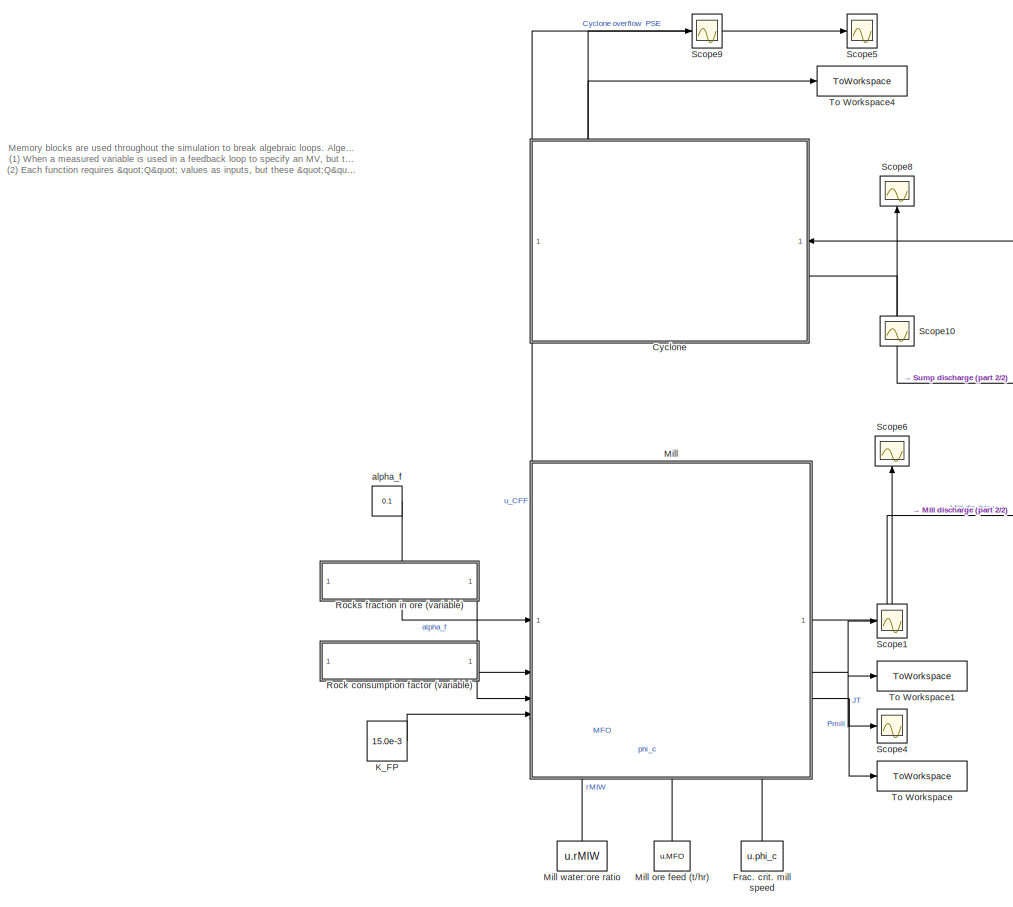
[diagram: root canvas - part 1/2, left side, full height]
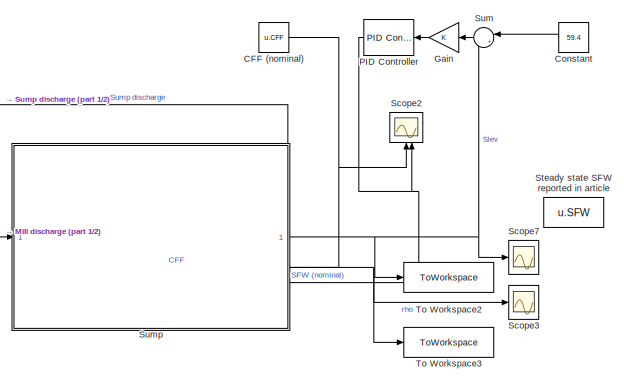
[diagram: root canvas - part 2/2, middle right region]
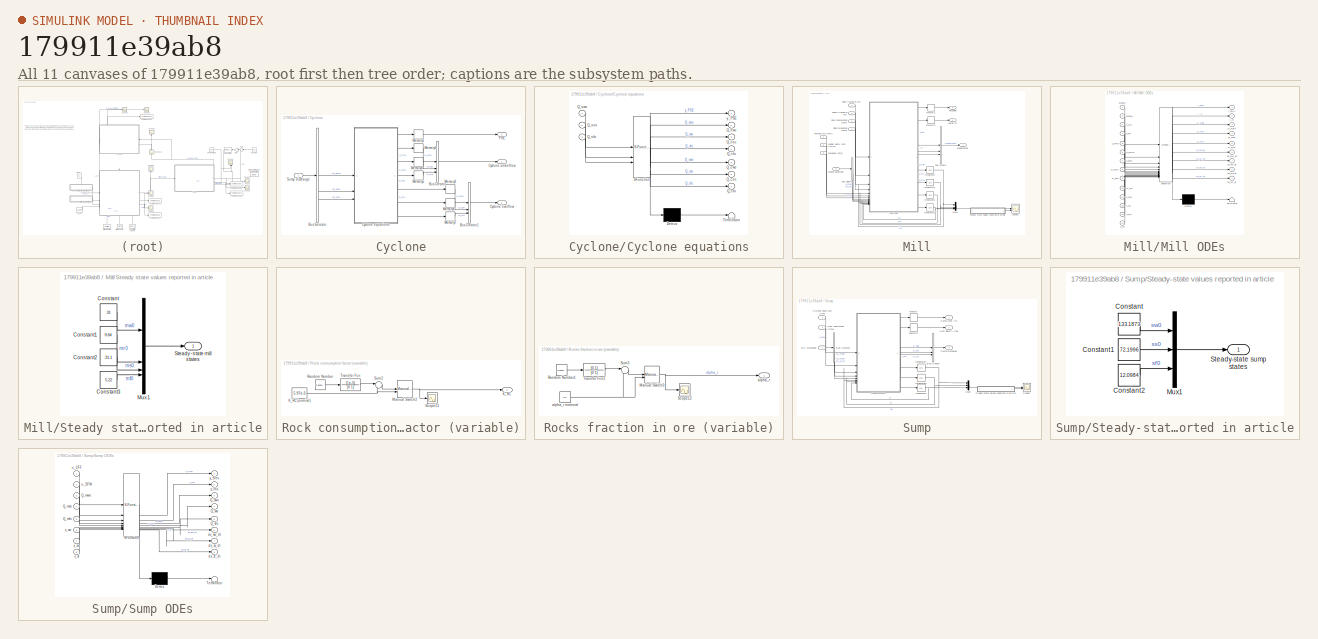
[diagram: thumbnail index - all 11 canvases of the model, root first then tree order]
MODEL slx_179911e39ab8
KIND model
CONFIG AbsTol = auto
CONFIG EnableMultiTasking = off
CONFIG FixedStep = auto
CONFIG MaxStep = auto
CONFIG MinStep = auto
CONFIG RelTol = 1e-3
CONFIG SampleTimeConstraint = Unconstrained
CONFIG SolverName = ode23s
CONFIG StartTime = 0.0
CONFIG StopTime = 200
BLOCK [Constant] CFF (nominal)
  NameLocation = left
  Value = u.CFF
BLOCK [Constant] Constant
  Value = 59.4
BLOCK [SubSystem] Cyclone
  PortSchema = {"entries":[{"content":{"sides":[{"content":{"connectorIds":["In1"]},"type":"ConnectorPlacement.EquallySpacedRectSide","uuid":"e004a590-ab7d-4f12-a32b-87c0f3362931"},{"content":{"side":"RIGHT"},"type":"ConnectorPlacement.EquallySpacedRectSide","uuid":"81f63357-3f4a-425b-a75c-7db5f55a4185"},{"content":{"connectorIds":["Out2","Out3"],"side":"TOP"},"type":"ConnectorPlacement.EquallySpacedRectSide","u...<+379ch>
BLOCK [BusCreator] Cyclone/Bus Creator
  DisplayOption = bar
  InheritFromInputs = on
  Inputs = 3
BLOCK [BusCreator] Cyclone/Bus Creator1
  DisplayOption = bar
  InheritFromInputs = on
  Inputs = 3
BLOCK [BusSelector] Cyclone/Bus Selector
  OutputSignals = Q_swo,Q_sso,Q_sfo
BLOCK [SubSystem] Cyclone/Cyclone equations
  ErrorFcn = Stateflow.Translate.translate
  PermitHierarchicalResolution = ExplicitOnly
  SFBlockType = MATLAB Function
  TreatAsAtomicUnit = on
BLOCK [Demux] Cyclone/Cyclone equations/ Demux 
  Outputs = 1
BLOCK [S-Function] Cyclone/Cyclone equations/ SFunction 
  EnableBusSupport = on
  FunctionName = sf_sfun
  PortCounts = [3 8]
  SFcnIsStateOwnerBlock = off
  SFunctionDeploymentMode = off
  Tag = Stateflow S-Function 3
BLOCK [Terminator] Cyclone/Cyclone equations/ Terminator 
BLOCK [Outport] Cyclone/Cyclone equations/Q_cfo
  Port = 7
BLOCK [Outport] Cyclone/Cyclone equations/Q_cfu
  Port = 4
BLOCK [Outport] Cyclone/Cyclone equations/Q_cso
  Port = 6
BLOCK [Outport] Cyclone/Cyclone equations/Q_csu
  Port = 3
BLOCK [Outport] Cyclone/Cyclone equations/Q_cwo
  Port = 5
BLOCK [Outport] Cyclone/Cyclone equations/Q_cwu
  Port = 2
BLOCK [Inport] Cyclone/Cyclone equations/Q_sfo
  Port = 3
BLOCK [Inport] Cyclone/Cyclone equations/Q_sso
  Port = 2
BLOCK [Inport] Cyclone/Cyclone equations/Q_swo
BLOCK [Outport] Cyclone/Cyclone equations/y_PSE
BLOCK [Outport] Cyclone/Cyclone overflow
  Port = 3
BLOCK [Outport] Cyclone/Cyclone underflow
BLOCK [Memory] Cyclone/Memory1
  InitialCondition = 37.9
BLOCK [Memory] Cyclone/Memory2
  InitialCondition = 1551.5
BLOCK [Memory] Cyclone/Memory3
  InitialCondition = 342.4747
BLOCK [Memory] Cyclone/Memory4
  InitialCondition = 654.4822
BLOCK [Memory] Cyclone/Memory5
  InitialCondition = 31.1095
BLOCK [Memory] Cyclone/Memory6
  InitialCondition = 372.2295
BLOCK [Memory] Cyclone/Memory7
  InitialCondition = 140.935
BLOCK [Outport] Cyclone/PSE
  Port = 2
BLOCK [Inport] Cyclone/Sump discharge
BLOCK [Constant] Frac. crit. mill speed
  Value = u.phi_c
BLOCK [Gain] Gain
BLOCK [Constant] K_FP
  NameLocation = left
  Value = 15.0e-3
BLOCK [SubSystem] Mill
  PortSchema = {"entries":[{"content":{"sides":[{"content":{"connectorIds":["In1","In2","In3","In4"]},"type":"ConnectorPlacement.EquallySpacedRectSide","uuid":"96805061-b1fe-4613-bdfe-c0403b68937d"},{"content":{"connectorIds":["Out1","Out2","Out3"],"side":"RIGHT"},"type":"ConnectorPlacement.EquallySpacedRectSide","uuid":"6c17841b-9594-4814-b3ce-f10677336251"},{"content":{"connectorIds":["In5"],"side":"TOP"},"typ...<+438ch>
BLOCK [Constant] Mill ore feed (t//hr)
  Value = u.MFO
BLOCK [Constant] Mill water:ore ratio
  Value = u.rMIW
BLOCK [BusCreator] Mill/Bus Creator
  DisplayOption = bar
  InheritFromInputs = on
  Inputs = Q_mwo,Q_mso,Q_mfo
BLOCK [BusSelector] Mill/Bus Selector
  OutputSignals = Q_cwu,Q_csu,Q_cfu
BLOCK [Inport] Mill/Cyclone underflow
  Port = 5
BLOCK [Inport] Mill/Fines fraction in ore
BLOCK [Inport] Mill/Fines production factor
  Port = 4
BLOCK [Integrator] Mill/Integrator
  InitialCondition = 31.4051
  LimitOutput = on
  LowerSaturationLimit = 0
BLOCK [Integrator] Mill/Integrator1
  InitialCondition = 9.8378
  LimitOutput = on
  LowerSaturationLimit = 0
BLOCK [Integrator] Mill/Integrator2
  InitialCondition = 31.1314
  LimitOutput = on
  LowerSaturationLimit = 0
BLOCK [Integrator] Mill/Integrator3
  InitialCondition = 5.2166
  LimitOutput = on
  LowerSaturationLimit = 0
BLOCK [Memory] Mill/Memory1
  InitialCondition = 14.812
BLOCK [Memory] Mill/Memory2
  InitialCondition = 0.328
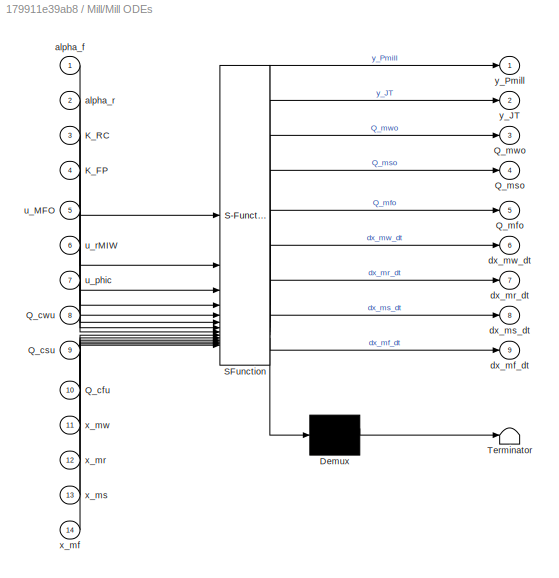
BLOCK [SubSystem] Mill/Mill ODEs
  ErrorFcn = Stateflow.Translate.translate
  PermitHierarchicalResolution = ExplicitOnly
  SFBlockType = MATLAB Function
  TreatAsAtomicUnit = on
BLOCK [Demux] Mill/Mill ODEs/ Demux 
  Outputs = 1
BLOCK [S-Function] Mill/Mill ODEs/ SFunction 
  EnableBusSupport = on
  FunctionName = sf_sfun
  PortCounts = [14 10]
  SFcnIsStateOwnerBlock = off
  SFunctionDeploymentMode = off
  Tag = Stateflow S-Function 2
BLOCK [Terminator] Mill/Mill ODEs/ Terminator 
BLOCK [Inport] Mill/Mill ODEs/K_FP
  Port = 4
BLOCK [Inport] Mill/Mill ODEs/K_RC
  Port = 3
BLOCK [Inport] Mill/Mill ODEs/Q_cfu
  Port = 10
BLOCK [Inport] Mill/Mill ODEs/Q_csu
  Port = 9
BLOCK [Inport] Mill/Mill ODEs/Q_cwu
  Port = 8
BLOCK [Outport] Mill/Mill ODEs/Q_mfo
  Port = 5
BLOCK [Outport] Mill/Mill ODEs/Q_mso
  Port = 4
BLOCK [Outport] Mill/Mill ODEs/Q_mwo
  Port = 3
BLOCK [Inport] Mill/Mill ODEs/alpha_f
BLOCK [Inport] Mill/Mill ODEs/alpha_r
  Port = 2
BLOCK [Outport] Mill/Mill ODEs/dx_mf_dt
  Port = 9
BLOCK [Outport] Mill/Mill ODEs/dx_mr_dt
  Port = 7
BLOCK [Outport] Mill/Mill ODEs/dx_ms_dt
  Port = 8
BLOCK [Outport] Mill/Mill ODEs/dx_mw_dt
  Port = 6
BLOCK [Inport] Mill/Mill ODEs/u_MFO
  Port = 5
BLOCK [Inport] Mill/Mill ODEs/u_phic
  Port = 7
BLOCK [Inport] Mill/Mill ODEs/u_rMIW
  Port = 6
BLOCK [Inport] Mill/Mill ODEs/x_mf
  Port = 14
BLOCK [Inport] Mill/Mill ODEs/x_mr
  Port = 12
BLOCK [Inport] Mill/Mill ODEs/x_ms
  Port = 13
BLOCK [Inport] Mill/Mill ODEs/x_mw
  Port = 11
BLOCK [Outport] Mill/Mill ODEs/y_JT
  Port = 2
BLOCK [Outport] Mill/Mill ODEs/y_Pmill
BLOCK [Outport] Mill/Mill discharge
BLOCK [Inport] Mill/Mill feed ore (MFO)
  Port = 7
BLOCK [Outport] Mill/Mill fill (JT)
  Port = 2
BLOCK [Inport] Mill/Mill inlet water ratio (rMIW)
  Port = 6
BLOCK [Outport] Mill/Mill power
  Port = 3
BLOCK [Inport] Mill/Mill speed (phi_C)
  Port = 8
BLOCK [Mux] Mill/Mux2
  DisplayOption = bar
BLOCK [Inport] Mill/Rock consumption factor
  Port = 3
BLOCK [Inport] Mill/Rocks fraction in ore
  Port = 2
BLOCK [Scope] Mill/Scope1
  Floating = off
  NumInputPorts = 2
  ScopeSpecificationString = Simulink.scopes.TimeScopeBlockCfg('CurrentConfiguration', extmgr.ConfigurationSet(extmgr.Configuration('Core','General UI',true,'FigureColor',[1 1 1]),extmgr.Configuration('Core','Source UI',true),extmgr.Configuration('Sources','WiredSimulink',true,'DataLoggingVariableName','ScopeData6'),extmgr.Configuration('Visuals','Time Domain',true,'SerializedDisplays',{struct('MinYLimReal','-3.51201','MaxYLi...<+2612ch>
BLOCK [SubSystem] Mill/Steady state values reported in article
BLOCK [Constant] Mill/Steady state values reported in article/Constant
  Value = 31
BLOCK [Constant] Mill/Steady state values reported in article/Constant1
  Value = 9.84
BLOCK [Constant] Mill/Steady state values reported in article/Constant2
  Value = 31.1
BLOCK [Constant] Mill/Steady state values reported in article/Constant3
  Value = 5.22
BLOCK [Mux] Mill/Steady state values reported in article/Mux1
  DisplayOption = bar
BLOCK [Outport] Mill/Steady state values reported in article/Steady-state mill states
BLOCK [Reference] PID Controller  REF=slpidlib/PID Controller
  LibrarySourceBlock = simulink/Continuous/PID Controller
  SourceBlock = slpidlib/PID Controller
  SourceType = PID 1dof
BLOCK [SubSystem] Rock consumption factor (variable)
BLOCK [Outport] Rock consumption factor (variable)/K_RC
BLOCK [Constant] Rock consumption factor (variable)/K_RC (nomial)
  NameLocation = left
  Value = 5.97e-3
BLOCK [ManualSwitch] Rock consumption factor (variable)/Manual Switch2
  CurrentSetting = 0
BLOCK [RandomNumber] Rock consumption factor (variable)/Random Number
  SampleTime = 4
BLOCK [Scope] Rock consumption factor (variable)/Scope11
  Floating = off
  NumInputPorts = 1
  ScopeSpecificationString = Simulink.scopes.TimeScopeBlockCfg('CurrentConfiguration', extmgr.ConfigurationSet(extmgr.Configuration('Core','General UI',true,'FigureColor',[1 1 1]),extmgr.Configuration('Core','Source UI',true),extmgr.Configuration('Sources','WiredSimulink',true,'DataLoggingVariableName','ScopeData1'),extmgr.Configuration('Visuals','Time Domain',true,'SerializedDisplays',{struct('MinYLimReal','0.00514','MaxYLim...<+1704ch>
BLOCK [Sum] Rock consumption factor (variable)/Sum2
  Inputs = |++
BLOCK [TransferFcn] Rock consumption factor (variable)/Transfer Fcn
  Denominator = [0 1]
  Numerator = [1e-3]
BLOCK [SubSystem] Rocks fraction in ore (variable)
BLOCK [ManualSwitch] Rocks fraction in ore (variable)/Manual Switch3
  CurrentSetting = 0
BLOCK [RandomNumber] Rocks fraction in ore (variable)/Random Number1
  SampleTime = 2
BLOCK [Scope] Rocks fraction in ore (variable)/Scope12
  Floating = off
  NumInputPorts = 1
  ScopeSpecificationString = Simulink.scopes.TimeScopeBlockCfg('CurrentConfiguration', extmgr.ConfigurationSet(extmgr.Configuration('Core','General UI',true,'FigureColor',[1 1 1]),extmgr.Configuration('Core','Source UI',true),extmgr.Configuration('Sources','WiredSimulink',true,'DataLoggingVariableName','ScopeData2'),extmgr.Configuration('Visuals','Time Domain',true,'SerializedDisplays',{struct('MinYLimReal','0.00514','MaxYLim...<+1704ch>
BLOCK [Sum] Rocks fraction in ore (variable)/Sum3
  Inputs = |++
BLOCK [TransferFcn] Rocks fraction in ore (variable)/Transfer Fcn1
  Denominator = [0 1]
  Numerator = [0.1]
BLOCK [Outport] Rocks fraction in ore (variable)/alpha_r
BLOCK [Constant] Rocks fraction in ore (variable)/alpha_r nominal
  NameLocation = left
  Value = 0.5
BLOCK [Scope] Scope1
  Floating = off
  NumInputPorts = 1
  ScopeSpecificationString = Simulink.scopes.TimeScopeBlockCfg('CurrentConfiguration', extmgr.ConfigurationSet(extmgr.Configuration('Core','General UI',true,'FigureColor',[1 1 1]),extmgr.Configuration('Core','Source UI',true),extmgr.Configuration('Sources','WiredSimulink',true,'DataLoggingVariableName','ScopeData4'),extmgr.Configuration('Visuals','Time Domain',true,'SerializedDisplays',{struct('MinYLimReal','0.31934','MaxYLim...<+1693ch>
BLOCK [Scope] Scope10
  Floating = off
  NameLocation = right
  NumInputPorts = 1
  ScopeSpecificationString = Simulink.scopes.TimeScopeBlockCfg('CurrentConfiguration', extmgr.ConfigurationSet(extmgr.Configuration('Core','General UI',true,'FigureColor',[1 1 1]),extmgr.Configuration('Core','Source UI',true),extmgr.Configuration('Sources','WiredSimulink',true,'DataLoggingVariableName','ScopeData2'),extmgr.Configuration('Visuals','Time Domain',true,'SerializedDisplays',{struct('MinYLimReal','-59.63541','MaxYL...<+2189ch>
BLOCK [Scope] Scope2
  Floating = off
  NameLocation = right
  NumInputPorts = 2
  ScopeSpecificationString = Simulink.scopes.TimeScopeBlockCfg('CurrentConfiguration', extmgr.ConfigurationSet(extmgr.Configuration('Core','General UI',true,'FigureColor',[1 1 1]),extmgr.Configuration('Core','Source UI',true),extmgr.Configuration('Sources','WiredSimulink',true,'DataLoggingVariableName','ScopeData5'),extmgr.Configuration('Visuals','Time Domain',true,'SerializedDisplays',{struct('MinYLimReal','615.90382','MaxYL...<+2239ch>
BLOCK [Scope] Scope3
  Floating = off
  NumInputPorts = 1
  ScopeSpecificationString = Simulink.scopes.TimeScopeBlockCfg('CurrentConfiguration', extmgr.ConfigurationSet(extmgr.Configuration('Core','General UI',true,'FigureColor',[1 1 1]),extmgr.Configuration('Core','Source UI',true),extmgr.Configuration('Sources','WiredSimulink',true,'DataLoggingVariableName','ScopeData2'),extmgr.Configuration('Visuals','Time Domain',true,'SerializedDisplays',{struct('MinYLimReal','1.75557','MaxYLim...<+1689ch>
BLOCK [Scope] Scope4
  Floating = off
  NumInputPorts = 1
  ScopeSpecificationString = Simulink.scopes.TimeScopeBlockCfg('CurrentConfiguration', extmgr.ConfigurationSet(extmgr.Configuration('Core','General UI',true,'FigureColor',[1 1 1]),extmgr.Configuration('Core','Source UI',true),extmgr.Configuration('Sources','WiredSimulink',true,'DataLoggingVariableName','ScopeData3'),extmgr.Configuration('Visuals','Time Domain',true,'SerializedDisplays',{struct('MinYLimReal','14.6843','MaxYLim...<+1699ch>
BLOCK [Scope] Scope5
  Floating = off
  NumInputPorts = 1
  ScopeSpecificationString = Simulink.scopes.TimeScopeBlockCfg('CurrentConfiguration', extmgr.ConfigurationSet(extmgr.Configuration('Core','General UI',true,'FigureColor',[1 1 1]),extmgr.Configuration('Core','Source UI',true),extmgr.Configuration('Sources','WiredSimulink',true,'DataLoggingVariableName','ScopeData5'),extmgr.Configuration('Visuals','Time Domain',true,'SerializedDisplays',{struct('MinYLimReal','35.73414','MaxYLi...<+1702ch>
BLOCK [Scope] Scope6
  Floating = off
  NameLocation = right
  NumInputPorts = 1
  ScopeSpecificationString = Simulink.scopes.TimeScopeBlockCfg('CurrentConfiguration', extmgr.ConfigurationSet(extmgr.Configuration('Core','General UI',true,'FigureColor',[1 1 1]),extmgr.Configuration('Core','Source UI',true),extmgr.Configuration('Sources','WiredSimulink',true,'DataLoggingVariableName','ScopeData6'),extmgr.Configuration('Visuals','Time Domain',true,'SerializedDisplays',{struct('MinYLimReal','44.69141','MaxYLi...<+2250ch>
BLOCK [Scope] Scope7
  Floating = off
  NumInputPorts = 1
  ScopeSpecificationString = Simulink.scopes.TimeScopeBlockCfg('CurrentConfiguration', extmgr.ConfigurationSet(extmgr.Configuration('Core','General UI',true,'FigureColor',[1 1 1]),extmgr.Configuration('Core','Source UI',true),extmgr.Configuration('Sources','WiredSimulink',true,'DataLoggingVariableName','ScopeData3'),extmgr.Configuration('Visuals','Time Domain',true,'SerializedDisplays',{struct('MinYLimReal','59.33077','MaxYLi...<+1704ch>
BLOCK [Scope] Scope8
  Floating = off
  NameLocation = right
  NumInputPorts = 1
  ScopeSpecificationString = Simulink.scopes.TimeScopeBlockCfg('CurrentConfiguration', extmgr.ConfigurationSet(extmgr.Configuration('Core','General UI',true,'FigureColor',[1 1 1]),extmgr.Configuration('Core','Source UI',true),extmgr.Configuration('Sources','WiredSimulink',true,'DataLoggingVariableName','ScopeData1'),extmgr.Configuration('Visuals','Time Domain',true,'SerializedDisplays',{struct('MinYLimReal','-91.9704','MaxYLi...<+2245ch>
BLOCK [Scope] Scope9
  Floating = off
  NumInputPorts = 1
  ScopeSpecificationString = Simulink.scopes.TimeScopeBlockCfg('CurrentConfiguration', extmgr.ConfigurationSet(extmgr.Configuration('Core','General UI',true,'FigureColor',[1 1 1]),extmgr.Configuration('Core','Source UI',true),extmgr.Configuration('Sources','WiredSimulink',true,'DataLoggingVariableName','ScopeData1'),extmgr.Configuration('Visuals','Time Domain',true,'SerializedDisplays',{struct('MinYLimReal','-91.9704','MaxYLi...<+2251ch>
BLOCK [Constant] Steady state SFW reported in article
  NameLocation = right
  Value = u.SFW
BLOCK [Sum] Sum
  Inputs = |+-
BLOCK [SubSystem] Sump
  PortSchema = {"entries":[{"content":{"sides":[{"content":{"connectorIds":["In1"]},"type":"ConnectorPlacement.EquallySpacedRectSide","uuid":"4a068f6d-5fe1-4cb3-a916-3556d51fbafc"},{"content":{"connectorIds":["In2","In3","Out1","Out2"],"side":"RIGHT"},"type":"ConnectorPlacement.EquallySpacedRectSide","uuid":"4fd936c1-8f9e-49fb-973c-89f6d774d731"},{"content":{"connectorIds":["Out3"],"side":"TOP"},"type":"Connecto...<+265ch>
BLOCK [BusCreator] Sump/Bus Creator
  DisplayOption = bar
  InheritFromInputs = on
  Inputs = 3
BLOCK [BusSelector] Sump/Bus Selector
  OutputSignals = Q_mwo,Q_mso,Q_mfo
BLOCK [Inport] Sump/Cyclone feed flow (CFF)
  Port = 2
BLOCK [Integrator] Sump/Integrator4
  InitialCondition = 133.187
  LimitOutput = on
  LowerSaturationLimit = 0
BLOCK [Integrator] Sump/Integrator5
  InitialCondition = 72.1996
  LimitOutput = on
  LowerSaturationLimit = 1e-3
BLOCK [Integrator] Sump/Integrator6
  InitialCondition = 12.09
  LimitOutput = on
  LowerSaturationLimit = 0
BLOCK [Memory] Sump/Memory
  InitialCondition = 59.4
BLOCK [Memory] Sump/Memory1
  InitialCondition = 1.7733
BLOCK [Inport] Sump/Mill discharge
BLOCK [Mux] Sump/Mux2
  DisplayOption = bar
  Inputs = 3
BLOCK [Scope] Sump/Scope7
  Floating = off
  NumInputPorts = 2
  ScopeSpecificationString = Simulink.scopes.TimeScopeBlockCfg('CurrentConfiguration', extmgr.ConfigurationSet(extmgr.Configuration('Core','General UI',true,'FigureColor',[1 1 1]),extmgr.Configuration('Core','Source UI',true),extmgr.Configuration('Sources','WiredSimulink',true,'DataLoggingVariableName','ScopeData12'),extmgr.Configuration('Visuals','Time Domain',true,'SerializedDisplays',{struct('MinYLimReal','-4.60535','MaxYL...<+2334ch>
BLOCK [SubSystem] Sump/Steady-state values reported in article
BLOCK [Constant] Sump/Steady-state values reported in article/Constant
  Value = 133.1873
BLOCK [Constant] Sump/Steady-state values reported in article/Constant1
  Value = 72.1996
BLOCK [Constant] Sump/Steady-state values reported in article/Constant2
  Value = 12.0984
BLOCK [Mux] Sump/Steady-state values reported in article/Mux1
  DisplayOption = bar
  Inputs = 3
BLOCK [Outport] Sump/Steady-state values reported in article/Steady-state sump states
BLOCK [Outport] Sump/Sum density (rho)
  Port = 2
BLOCK [Inport] Sump/Sum feed water (SFW)
  Port = 3
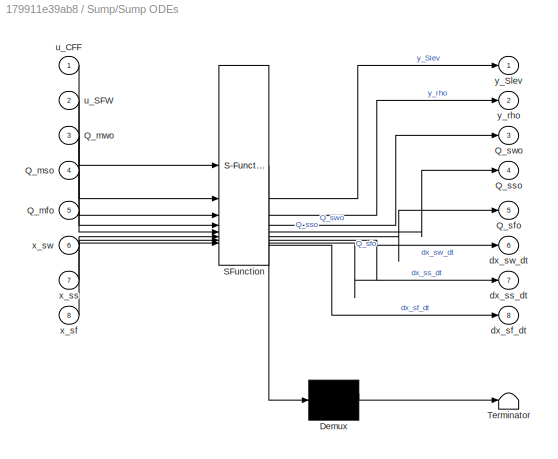
BLOCK [SubSystem] Sump/Sump ODEs
  ErrorFcn = Stateflow.Translate.translate
  PermitHierarchicalResolution = ExplicitOnly
  SFBlockType = MATLAB Function
  TreatAsAtomicUnit = on
BLOCK [Demux] Sump/Sump ODEs/ Demux 
  Outputs = 1
BLOCK [S-Function] Sump/Sump ODEs/ SFunction 
  EnableBusSupport = on
  FunctionName = sf_sfun
  PortCounts = [8 9]
  SFcnIsStateOwnerBlock = off
  SFunctionDeploymentMode = off
  Tag = Stateflow S-Function 1
BLOCK [Terminator] Sump/Sump ODEs/ Terminator 
BLOCK [Inport] Sump/Sump ODEs/Q_mfo
  Port = 5
BLOCK [Inport] Sump/Sump ODEs/Q_mso
  Port = 4
BLOCK [Inport] Sump/Sump ODEs/Q_mwo
  Port = 3
BLOCK [Outport] Sump/Sump ODEs/Q_sfo
  Port = 5
BLOCK [Outport] Sump/Sump ODEs/Q_sso
  Port = 4
BLOCK [Outport] Sump/Sump ODEs/Q_swo
  Port = 3
BLOCK [Outport] Sump/Sump ODEs/dx_sf_dt
  Port = 8
BLOCK [Outport] Sump/Sump ODEs/dx_ss_dt
  Port = 7
BLOCK [Outport] Sump/Sump ODEs/dx_sw_dt
  Port = 6
BLOCK [Inport] Sump/Sump ODEs/u_CFF
BLOCK [Inport] Sump/Sump ODEs/u_SFW
  Port = 2
BLOCK [Inport] Sump/Sump ODEs/x_sf
  Port = 8
BLOCK [Inport] Sump/Sump ODEs/x_ss
  Port = 7
BLOCK [Inport] Sump/Sump ODEs/x_sw
  Port = 6
BLOCK [Outport] Sump/Sump ODEs/y_Slev
BLOCK [Outport] Sump/Sump ODEs/y_rho
  Port = 2
BLOCK [Outport] Sump/Sump discharge
  Port = 3
BLOCK [Outport] Sump/Sump level (%)
BLOCK [ToWorkspace] To Workspace
  FixptAsFi = on
  MaxDataPoints = inf
  SampleTime = 1/60
  VariableName = Pmill
BLOCK [ToWorkspace] To Workspace1
  FixptAsFi = on
  MaxDataPoints = inf
  SampleTime = 1/60
  VariableName = JT
BLOCK [ToWorkspace] To Workspace2
  FixptAsFi = on
  MaxDataPoints = inf
  SampleTime = 1/60
  VariableName = Slev
BLOCK [ToWorkspace] To Workspace3
  FixptAsFi = on
  MaxDataPoints = inf
  SampleTime = 1/60
  VariableName = rho
BLOCK [ToWorkspace] To Workspace4
  FixptAsFi = on
  MaxDataPoints = inf
  SampleTime = 1/60
  VariableName = PSE
BLOCK [Constant] alpha_f
  NameLocation = left
  Value = 0.1
ANNOTATION (root): Memory blocks are used throughout the simulation to break algebraic loops. Algebraic loops occur for two reasons: (1) When a measured variable is used in a feedback loop to specify an MV, but the MV is a required input in the function block used to calculate the measured variable (2) Each function requires "Q" values as inputs, but these "Q" values are outputs from the other functions, forming an ...<+15ch>
NET CFF (nominal):1 -> Scope2:1, Sump:2
LINE Constant:1 -> Sum:1
LINE Cyclone/Bus Creator1:1 -> Cyclone/Cyclone overflow:1
LINE Cyclone/Bus Creator:1 -> Cyclone/Cyclone underflow:1
LINE Cyclone/Bus Selector:1 -> Cyclone/Cyclone equations:1
LINE Cyclone/Bus Selector:2 -> Cyclone/Cyclone equations:2
LINE Cyclone/Bus Selector:3 -> Cyclone/Cyclone equations:3
LINE Cyclone/Cyclone equations:1 -> Cyclone/Memory1:1
LINE Cyclone/Cyclone equations:2 -> Cyclone/Memory3:1
LINE Cyclone/Cyclone equations:3 -> Cyclone/Memory4:1
LINE Cyclone/Cyclone equations:4 -> Cyclone/Memory5:1
LINE Cyclone/Cyclone equations:5 -> Cyclone/Memory2:1
LINE Cyclone/Cyclone equations:6 -> Cyclone/Memory6:1
LINE Cyclone/Cyclone equations:7 -> Cyclone/Memory7:1
LINE Cyclone/Memory1:1 -> Cyclone/PSE:1
LINE Cyclone/Memory2:1 -> Cyclone/Bus Creator1:1
LINE Cyclone/Memory3:1 -> Cyclone/Bus Creator:1
LINE Cyclone/Memory4:1 -> Cyclone/Bus Creator:2
LINE Cyclone/Memory5:1 -> Cyclone/Bus Creator:3
LINE Cyclone/Memory6:1 -> Cyclone/Bus Creator1:2
LINE Cyclone/Memory7:1 -> Cyclone/Bus Creator1:3
LINE Cyclone/Sump discharge:1 -> Cyclone/Bus Selector:1
NET Cyclone:1 -> Mill:5, Scope10:1
NET Cyclone:2 -> Scope5:1, To Workspace4:1
LINE Cyclone:3 -> Scope9:1
LINE Frac. crit. mill speed:1 -> Mill:8
LINE Gain:1 -> PID Controller:1
LINE K_FP:1 -> Mill:4
LINE Mill ore feed (t//hr):1 -> Mill:7
LINE Mill water:ore ratio:1 -> Mill:6
LINE Mill/Bus Creator:1 -> Mill/Mill discharge:1
LINE Mill/Bus Selector:1 -> Mill/Mill ODEs:8
LINE Mill/Bus Selector:2 -> Mill/Mill ODEs:9
LINE Mill/Bus Selector:3 -> Mill/Mill ODEs:10
LINE Mill/Cyclone underflow:1 -> Mill/Bus Selector:1
LINE Mill/Fines fraction in ore:1 -> Mill/Mill ODEs:1
LINE Mill/Fines production factor:1 -> Mill/Mill ODEs:4
NET Mill/Integrator1:1 -> Mill/Mill ODEs:12, Mill/Mux2:2
NET Mill/Integrator2:1 -> Mill/Mill ODEs:13, Mill/Mux2:3
NET Mill/Integrator3:1 -> Mill/Mill ODEs:14, Mill/Mux2:4
NET Mill/Integrator:1 -> Mill/Mill ODEs:11, Mill/Mux2:1
LINE Mill/Memory1:1 -> Mill/Mill power:1
LINE Mill/Memory2:1 -> Mill/Mill fill (JT):1
LINE Mill/Mill ODEs:1 -> Mill/Memory1:1
LINE Mill/Mill ODEs:2 -> Mill/Memory2:1
LINE Mill/Mill ODEs:3 -> Mill/Bus Creator:1
LINE Mill/Mill ODEs:4 -> Mill/Bus Creator:2
LINE Mill/Mill ODEs:5 -> Mill/Bus Creator:3
LINE Mill/Mill ODEs:6 -> Mill/Integrator:1
LINE Mill/Mill ODEs:7 -> Mill/Integrator1:1
LINE Mill/Mill ODEs:8 -> Mill/Integrator2:1
LINE Mill/Mill ODEs:9 -> Mill/Integrator3:1
LINE Mill/Mill feed ore (MFO):1 -> Mill/Mill ODEs:5
LINE Mill/Mill inlet water ratio (rMIW):1 -> Mill/Mill ODEs:6
LINE Mill/Mill speed (phi_C):1 -> Mill/Mill ODEs:7
LINE Mill/Mux2:1 -> Mill/Scope1:1
LINE Mill/Rock consumption factor:1 -> Mill/Mill ODEs:3
LINE Mill/Rocks fraction in ore:1 -> Mill/Mill ODEs:2
LINE Mill/Steady state values reported in article/Constant1:1 -> Mill/Steady state values reported in article/Mux1:2
LINE Mill/Steady state values reported in article/Constant2:1 -> Mill/Steady state values reported in article/Mux1:3
LINE Mill/Steady state values reported in article/Constant3:1 -> Mill/Steady state values reported in article/Mux1:4
LINE Mill/Steady state values reported in article/Constant:1 -> Mill/Steady state values reported in article/Mux1:1
LINE Mill/Steady state values reported in article/Mux1:1 -> Mill/Steady state values reported in article/Steady-state mill states:1
LINE Mill/Steady state values reported in article:1 -> Mill/Scope1:2
NET Mill:1 -> Scope6:1, Sump:1
NET Mill:2 -> Scope1:1, To Workspace1:1
NET Mill:3 -> Scope4:1, To Workspace:1
NET PID Controller:1 -> Scope2:2, Sump:3
NET Rock consumption factor (variable)/K_RC (nomial):1 -> Rock consumption factor (variable)/Manual Switch2:2, Rock consumption factor (variable)/Sum2:2
NET Rock consumption factor (variable)/Manual Switch2:1 -> Rock consumption factor (variable)/K_RC:1, Rock consumption factor (variable)/Scope11:1
LINE Rock consumption factor (variable)/Random Number:1 -> Rock consumption factor (variable)/Transfer Fcn:1
LINE Rock consumption factor (variable)/Sum2:1 -> Rock consumption factor (variable)/Manual Switch2:1
LINE Rock consumption factor (variable)/Transfer Fcn:1 -> Rock consumption factor (variable)/Sum2:1
LINE Rock consumption factor (variable):1 -> Mill:3
NET Rocks fraction in ore (variable)/Manual Switch3:1 -> Rocks fraction in ore (variable)/Scope12:1, Rocks fraction in ore (variable)/alpha_r:1
LINE Rocks fraction in ore (variable)/Random Number1:1 -> Rocks fraction in ore (variable)/Transfer Fcn1:1
LINE Rocks fraction in ore (variable)/Sum3:1 -> Rocks fraction in ore (variable)/Manual Switch3:1
LINE Rocks fraction in ore (variable)/Transfer Fcn1:1 -> Rocks fraction in ore (variable)/Sum3:1
NET Rocks fraction in ore (variable)/alpha_r nominal:1 -> Rocks fraction in ore (variable)/Manual Switch3:2, Rocks fraction in ore (variable)/Sum3:2
LINE Rocks fraction in ore (variable):1 -> Mill:2
LINE Sum:1 -> Gain:1
LINE Sump/Bus Creator:1 -> Sump/Sump discharge:1
LINE Sump/Bus Selector:1 -> Sump/Sump ODEs:3
LINE Sump/Bus Selector:2 -> Sump/Sump ODEs:4
LINE Sump/Bus Selector:3 -> Sump/Sump ODEs:5
LINE Sump/Cyclone feed flow (CFF):1 -> Sump/Sump ODEs:1
NET Sump/Integrator4:1 -> Sump/Mux2:1, Sump/Sump ODEs:6
NET Sump/Integrator5:1 -> Sump/Mux2:2, Sump/Sump ODEs:7
NET Sump/Integrator6:1 -> Sump/Mux2:3, Sump/Sump ODEs:8
LINE Sump/Memory1:1 -> Sump/Sum density (rho):1
LINE Sump/Memory:1 -> Sump/Sump level (%):1
LINE Sump/Mill discharge:1 -> Sump/Bus Selector:1
LINE Sump/Mux2:1 -> Sump/Scope7:1
LINE Sump/Steady-state values reported in article/Constant1:1 -> Sump/Steady-state values reported in article/Mux1:2
LINE Sump/Steady-state values reported in article/Constant2:1 -> Sump/Steady-state values reported in article/Mux1:3
LINE Sump/Steady-state values reported in article/Constant:1 -> Sump/Steady-state values reported in article/Mux1:1
LINE Sump/Steady-state values reported in article/Mux1:1 -> Sump/Steady-state values reported in article/Steady-state sump states:1
LINE Sump/Steady-state values reported in article:1 -> Sump/Scope7:2
LINE Sump/Sum feed water (SFW):1 -> Sump/Sump ODEs:2
LINE Sump/Sump ODEs:1 -> Sump/Memory:1
LINE Sump/Sump ODEs:2 -> Sump/Memory1:1
LINE Sump/Sump ODEs:3 -> Sump/Bus Creator:1
LINE Sump/Sump ODEs:4 -> Sump/Bus Creator:2
LINE Sump/Sump ODEs:5 -> Sump/Bus Creator:3
LINE Sump/Sump ODEs:6 -> Sump/Integrator4:1
LINE Sump/Sump ODEs:7 -> Sump/Integrator5:1
LINE Sump/Sump ODEs:8 -> Sump/Integrator6:1
NET Sump:1 -> Scope7:1, Sum:2, To Workspace2:1
NET Sump:2 -> Scope3:1, To Workspace3:1
NET Sump:3 -> Cyclone:1, Scope8:1
LINE alpha_f:1 -> Mill:1
note: NET lines group one-source signal fan-out (src -> all destinations, sorted); 1:1 wires keep LINE
CHART Sump/Sump ODEs states=1 transitions=1
  STATE_LABEL 'eML_blk_kernel()'
  STATE_LABEL 'SCRIPT:\nfunction [y_Slev, y_rho, Q_swo, Q_sso, Q_sfo, dx_sw_dt, dx_ss_dt, dx_sf_dt] = SumpModel(u_CFF, u_SFW, Q_mwo, Q_mso, Q_mfo, x_sw, x_ss, x_sf)\n% Inputs:\n%  u_SFW:  (m3/h), sump feed water flowrate\n%  u_CFF:  (m3/h), cyclone feed flowrate\n\n% Shared parameters\nrho_o = 3.2;  % t/m3, density of ore\nrho_w = 1.0;  % t/m3, density of water\n\n% Sump parameters\nv_sump = 345.8; % m3, sump volume\n\n% Sum...<+682ch>'
CHART Mill/Mill ODEs states=1 transitions=1
  STATE_LABEL 'eML_blk_kernel()'
  STATE_LABEL 'SCRIPT:\nfunction [y_Pmill, y_JT, Q_mwo, Q_mso, Q_mfo, dx_mw_dt, dx_mr_dt, dx_ms_dt, dx_mf_dt] = MillModel(alpha_f, alpha_r, K_RC, K_FP, u_MFO, u_rMIW, u_phic, Q_cwu, Q_csu, Q_cfu, x_mw, x_mr, x_ms, x_mf)\n% Inputs:\n%  u_MFO:  (t/h), mill feed ore\n%  u_rMIW: (~), ratio of mill inlet water to feed ore\n%  u_phic: (~), fraction of critical mill speed\n\n% Shared parameters\nrho_o = 3.2;  % t/m3, density o...<+2639ch>'
CHART Cyclone/Cyclone equations states=1 transitions=1
  STATE_LABEL 'eML_blk_kernel()'
  STATE_LABEL 'SCRIPT:\nfunction [y_PSE, Q_cwu, Q_csu, Q_cfu, Q_cwo, Q_cso, Q_cfo] = CycloneModel(Q_swo, Q_sso, Q_sfo)\n% Inputs:\n%  u_SFW:  (m3/h), sump feed water flowrate\n%  u_CFF:  (m3/h), cyclone feed flowrate\n\n% Cyclone parameters\nC1 = 0.7; % ~\nC2 = 0.7; % ~\nC3 = 4;   % ~\nalpha_su = 0.1185; % ~\neps_C = 2528; % m3/h\n\n% Intermediate variables\nu_CFF = Q_swo + Q_sso;\nFi = Q_sso/u_CFF;   % ~, fraction solids in t...<+791ch>'
CHART  states=0 transitions=0
CHART  states=0 transitions=0
CHART  states=0 transitions=0
